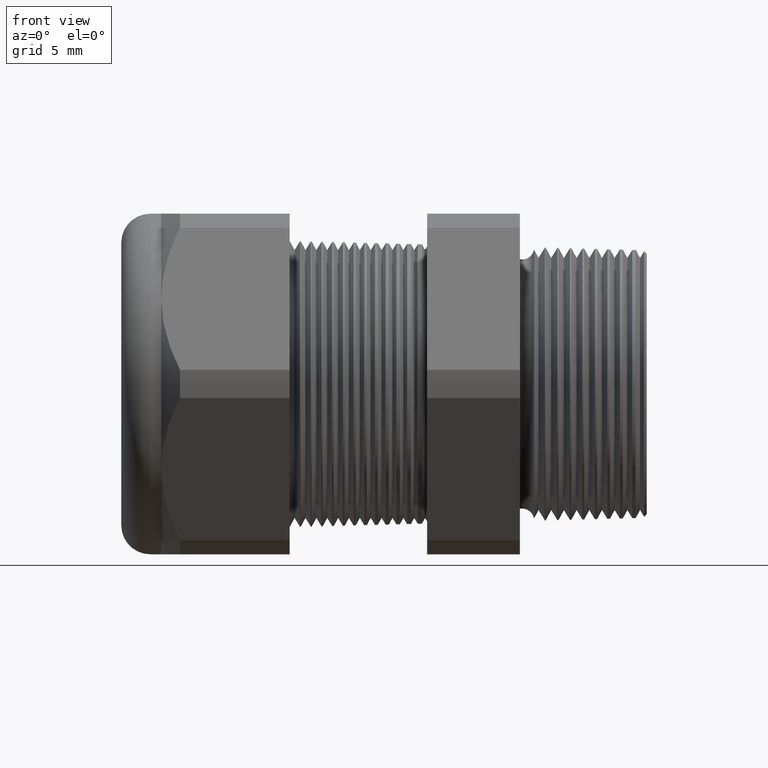
[diagram: clean part render]
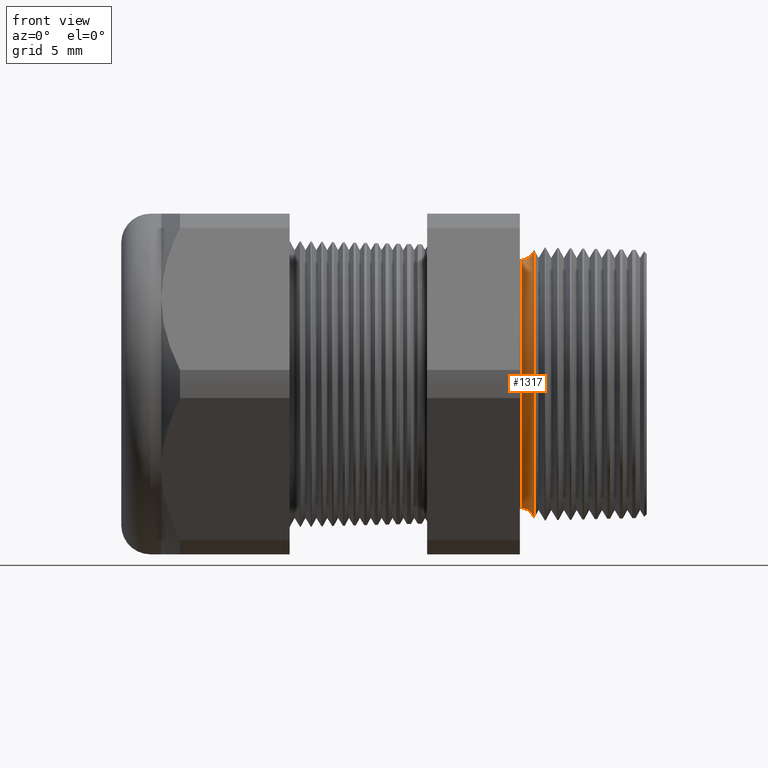
[diagram: same view with one face highlighted and labeled with its STEP entity id]
A machine part, front view. The second image highlights one B-rep face of the part: STEP entity #1317.
In plain terms, the highlighted toroidal blend (fillet) surface has major radius 9.6104 mm and minor (blend) radius 0.889 mm.
Its self-contained STEP definition (entity closure, byte-faithful):
#1176 = EDGE_CURVE ( 'NONE', #1362, #1305, #3745, .T. ) ;
#1304 = EDGE_CURVE ( 'NONE', #1305, #1306, #3999, .T. ) ;
#1305 = VERTEX_POINT ( 'NONE', #3994 ) ;
#1306 = VERTEX_POINT ( 'NONE', #3993 ) ;
#1308 = VERTEX_POINT ( 'NONE', #3992 ) ;
#1317 = ADVANCED_FACE ( 'NONE', ( #3979 ), #3976, .F. ) ;
#1318 = EDGE_LOOP ( 'NONE', ( #1319, #1339, #1341, #1342 ) ) ;
#1319 = ORIENTED_EDGE ( 'NONE', *, *, #1361, .T. ) ;
#1339 = ORIENTED_EDGE ( 'NONE', *, *, #1340, .T. ) ;
#1340 = EDGE_CURVE ( 'NONE', #1308, #1306, #4067, .T. ) ;
#1341 = ORIENTED_EDGE ( 'NONE', *, *, #1304, .F. ) ;
#1342 = ORIENTED_EDGE ( 'NONE', *, *, #1176, .F. ) ;
#1361 = EDGE_CURVE ( 'NONE', #1362, #1308, #4035, .T. ) ;
#1362 = VERTEX_POINT ( 'NONE', #4093 ) ;
#3741 = DIRECTION ( 'NONE',  ( 0.0000000000000000000, 0.0000000000000000000, 1.000000000000000000 ) ) ;
#3742 = DIRECTION ( 'NONE',  ( 1.000000000000000000, 0.0000000000000000000, 0.0000000000000000000 ) ) ;
#3743 = CARTESIAN_POINT ( 'NONE',  ( -0.2708463023710456800, 0.0000000000000000000, 0.0000000000000000000 ) ) ;
#3744 = AXIS2_PLACEMENT_3D ( 'NONE', #3743, #3742, #3741 ) ;
#3745 = CIRCLE ( 'NONE', #3744, 0.3707104400814421600 ) ;
#3973 = DIRECTION ( 'NONE',  ( 0.0000000000000000000, 0.0000000000000000000, -1.000000000000000000 ) ) ;
#3974 = DIRECTION ( 'NONE',  ( 1.000000000000000000, 0.0000000000000000000, 0.0000000000000000000 ) ) ;
#3975 = AXIS2_PLACEMENT_3D ( 'NONE', #3978, #3974, #3973 ) ;
#3976 = TOROIDAL_SURFACE ( 'NONE', #3975, 0.3783605994438361000, 0.03499999999999994800 ) ;
#3978 = CARTESIAN_POINT ( 'NONE',  ( -0.3049999999999999400, 0.0000000000000000000, 0.0000000000000000000 ) ) ;
#3979 = FACE_OUTER_BOUND ( 'NONE', #1318, .T. ) ;
#3992 = CARTESIAN_POINT ( 'NONE',  ( -0.3049999999999999400, 4.204954590622103200E-017, 0.3433605994438361200 ) ) ;
#3993 = CARTESIAN_POINT ( 'NONE',  ( -0.3049999999999999400, 0.0000000000000000000, -0.3433605994438361200 ) ) ;
#3994 = CARTESIAN_POINT ( 'NONE',  ( -0.2708463023710456800, 4.539893538562447500E-017, -0.3707104400814421600 ) ) ;
#3995 = DIRECTION ( 'NONE',  ( 0.0000000000000000000, 0.0000000000000000000, -1.000000000000000000 ) ) ;
#3996 = DIRECTION ( 'NONE',  ( 0.0000000000000000000, -1.000000000000000000, 0.0000000000000000000 ) ) ;
#3997 = CARTESIAN_POINT ( 'NONE',  ( -0.3049999999999999400, 0.0000000000000000000, -0.3783605994438361000 ) ) ;
#3998 = AXIS2_PLACEMENT_3D ( 'NONE', #3997, #3996, #3995 ) ;
#3999 = CIRCLE ( 'NONE', #3998, 0.03499999999999996900 ) ;
#4035 = CIRCLE ( 'NONE', #4097, 0.03499999999999996900 ) ;
#4063 = DIRECTION ( 'NONE',  ( 0.0000000000000000000, 0.0000000000000000000, -1.000000000000000000 ) ) ;
#4064 = DIRECTION ( 'NONE',  ( 1.000000000000000000, 0.0000000000000000000, 0.0000000000000000000 ) ) ;
#4065 = CARTESIAN_POINT ( 'NONE',  ( -0.3049999999999999400, 0.0000000000000000000, 0.0000000000000000000 ) ) ;
#4066 = AXIS2_PLACEMENT_3D ( 'NONE', #4065, #4064, #4063 ) ;
#4067 = CIRCLE ( 'NONE', #4066, 0.3433605994438361200 ) ;
#4093 = CARTESIAN_POINT ( 'NONE',  ( -0.2708463023710456800, 0.0000000000000000000, 0.3707104400814421600 ) ) ;
#4094 = DIRECTION ( 'NONE',  ( 0.0000000000000000000, 1.224646799147352700E-016, 1.000000000000000000 ) ) ;
#4095 = DIRECTION ( 'NONE',  ( 0.0000000000000000000, 1.000000000000000000, -1.224646799147353200E-016 ) ) ;
#4096 = CARTESIAN_POINT ( 'NONE',  ( -0.3049999999999999400, 4.633580970323677100E-017, 0.3783605994438361000 ) ) ;
#4097 = AXIS2_PLACEMENT_3D ( 'NONE', #4096, #4095, #4094 ) ;